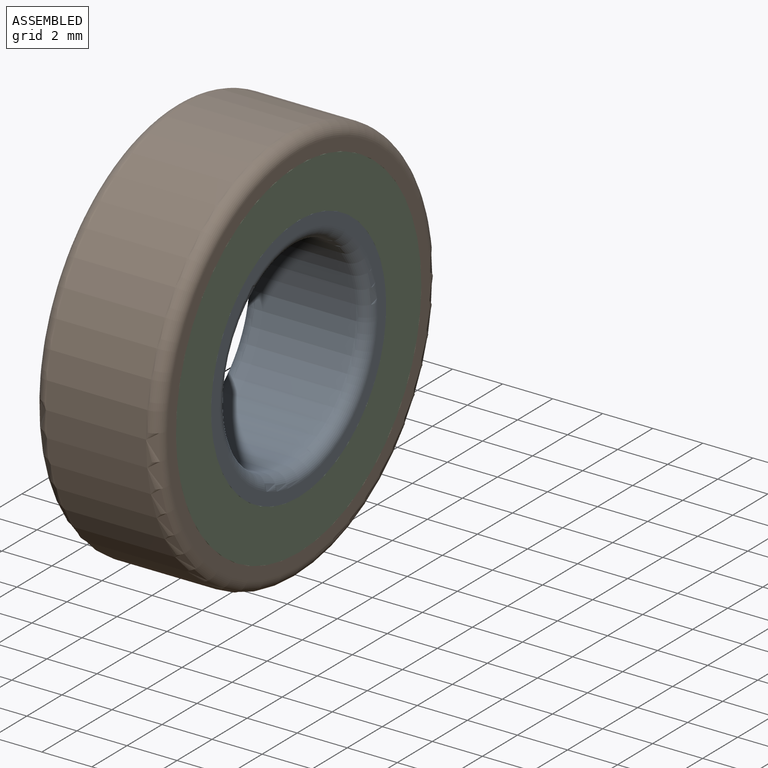
[diagram: assembled view]
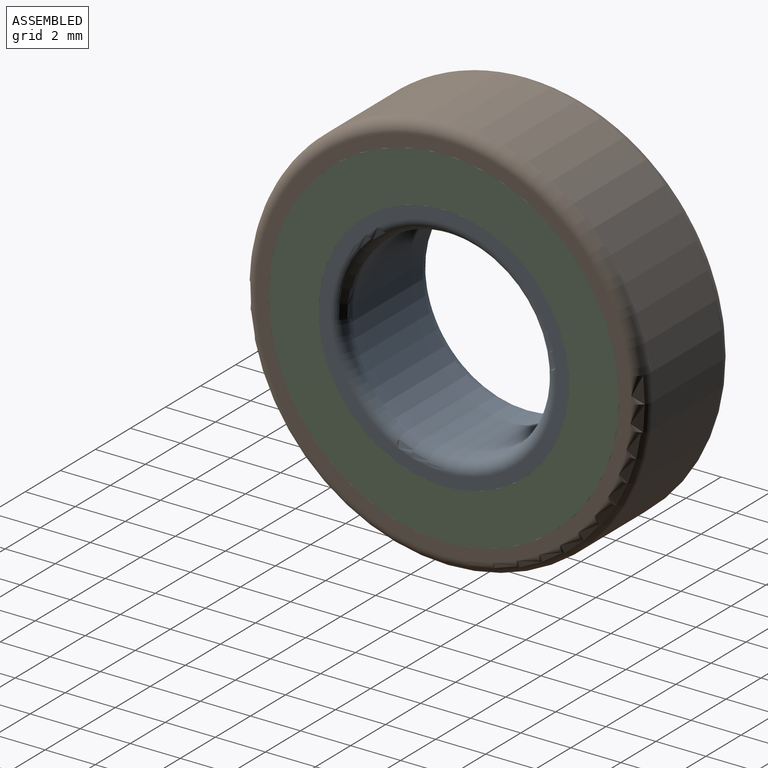
[diagram: assembled view, second angle]
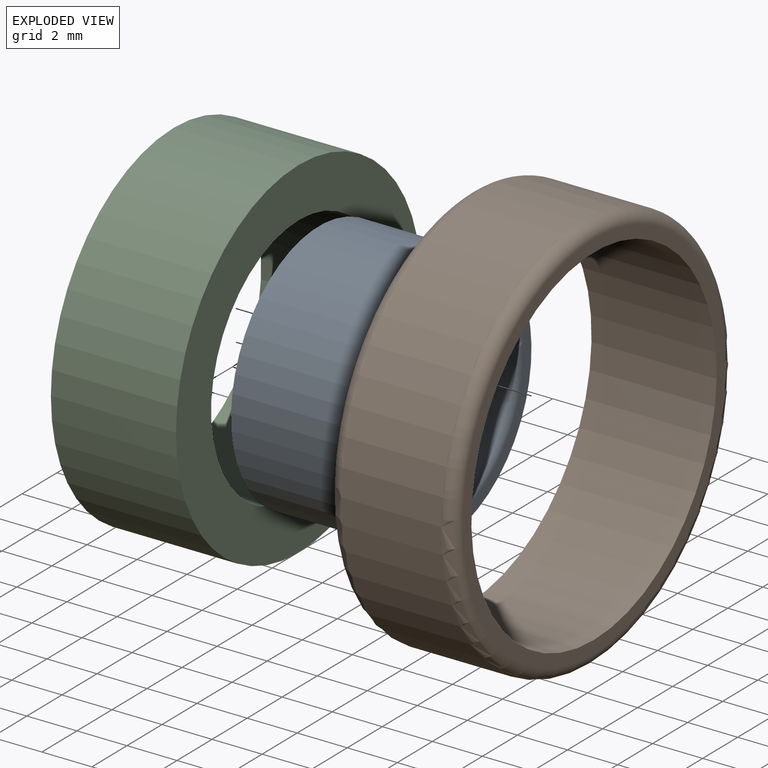
[diagram: exploded view]
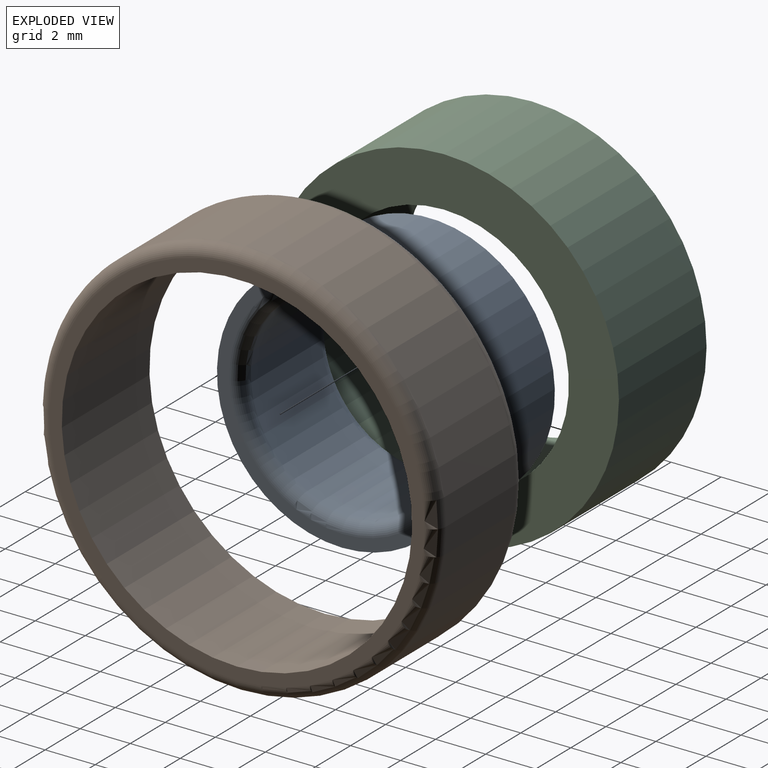
[diagram: exploded view, second angle]
ASSEMBLY  parts=3 mates=2
PART A: 6 faces, bbox 5x10.5x10.5 mm
  f0: cylinder r=4mm len=8mm, axis (-1,0,0), area 100.5mm2, adj f4,f5
  f1: cylinder r=5mm len=10mm, axis (-1,0,0), area 157.1mm2, adj f2,f3
  f2: plane 10x10mm, normal (1,0,0), area 14.9mm2, adj f1,f5
  f3: plane 10x10mm, normal (-1,0,0), area 14.9mm2, adj f1,f4
  f4: torus R=4.5mm, axis (1,0,0), area 20.6mm2, adj f0,f3
  f5: torus R=4.5mm, axis (1,0,0), area 20.6mm2, adj f0,f2
PART B: 6 faces, bbox 5x17.3x17.3 mm
  f0: cylinder r=7mm len=14mm, axis (-1,0,0), area 219.9mm2, adj f2,f3
  f1: cylinder r=8mm len=16mm, axis (-1,0,0), area 201.1mm2, adj f4,f5
  f2: plane 15x15mm, normal (1,0,0), area 22.8mm2, adj f0,f5
  f3: plane 15x15mm, normal (-1,0,0), area 22.8mm2, adj f0,f4
  f4: torus R=7.5mm, axis (1,0,0), area 38.6mm2, adj f1,f3
  f5: torus R=7.5mm, axis (1,0,0), area 38.6mm2, adj f1,f2
PART C: 4 faces, bbox 5x14x14 mm
  f0: cylinder r=5mm len=10mm, axis (-1,0,0), area 157.1mm2, adj f2,f3
  f1: cylinder r=7mm len=14mm, axis (-1,0,0), area 219.9mm2, adj f2,f3
  f2: plane 14x14mm, normal (1,0,0), area 75.4mm2, adj f0,f1
  f3: plane 14x14mm, normal (-1,0,0), area 75.4mm2, adj f0,f1
PLACE A t=(-15.31,60.07,-3.39)mm
PLACE B t=(-15.31,60.07,-3.39)mm
PLACE C t=(-15.31,60.07,-3.39)mm
MATE revolute B.f0 <-> C.f0  axis (1,0,0) through (-10.31,1.1,-3.39)mm
MATE revolute A.f0 <-> C.f0  axis (1,0,0) through (-10.31,1.1,-3.39)mm
